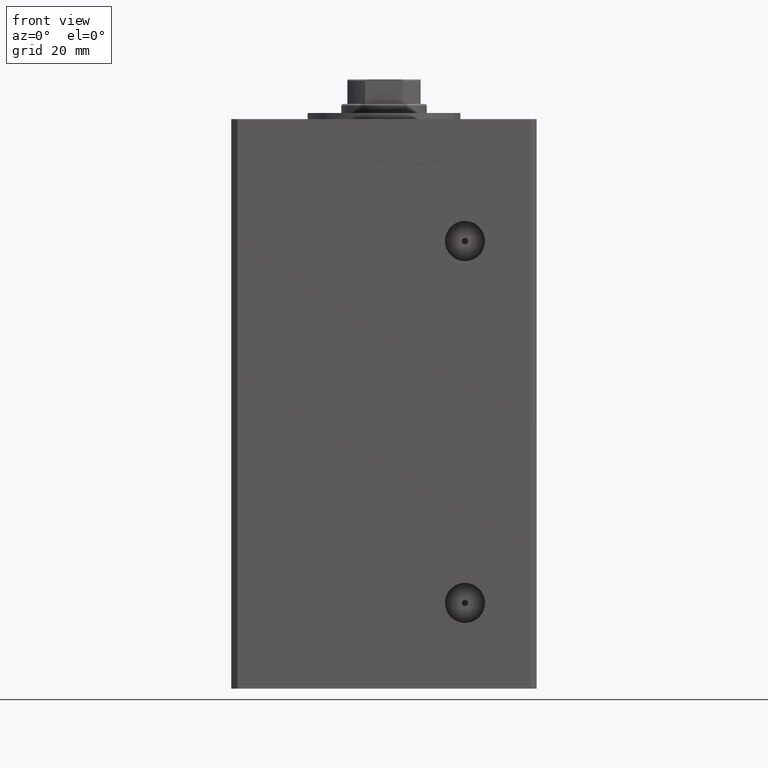
[diagram: clean part render]
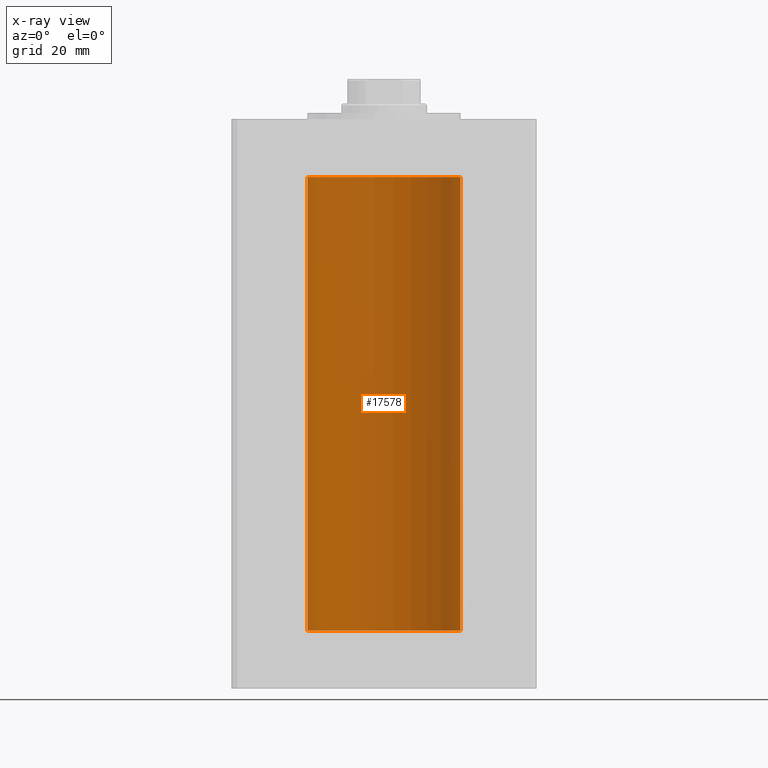
[diagram: x-ray — body ghosted, one internal face saturated and labeled with its STEP entity id]
A machine part, front view, then the same camera in x-ray: the body is ghosted and one INTERNAL B-rep face — a face not visible from any outside direction — is saturated and labeled: STEP entity #17578.
In plain terms, the highlighted cylindrical surface (partial cylindrical patch) has radius 25 mm, axis along (-0, -0, -1).
Its self-contained STEP definition (entity closure, byte-faithful):
#1449 = VERTEX_POINT ( 'NONE', #18711 ) ;
#3375 = DIRECTION ( 'NONE',  ( -1.000000000000000000, 0.000000000000000000, 0.000000000000000000 ) ) ;
#5878 = CARTESIAN_POINT ( 'NONE',  ( -25.00000000000000000, 0.000000000000000000, 0.000000000000000000 ) ) ;
#6445 = AXIS2_PLACEMENT_3D ( 'NONE', #10651, #31479, #14613 ) ;
#7211 = CARTESIAN_POINT ( 'NONE',  ( 0.000000000000000000, 0.000000000000000000, 148.5000000000000000 ) ) ;
#8178 = ORIENTED_EDGE ( 'NONE', *, *, #48488, .F. ) ;
#8936 = CARTESIAN_POINT ( 'NONE',  ( 25.00000000000000000, 3.061616997868383043E-15, 0.000000000000000000 ) ) ;
#10370 = VECTOR ( 'NONE', #48787, 1000.000000000000000 ) ;
#10651 = CARTESIAN_POINT ( 'NONE',  ( 0.000000000000000000, 0.000000000000000000, 0.000000000000000000 ) ) ;
#12387 = CARTESIAN_POINT ( 'NONE',  ( -25.00000000000000000, 0.000000000000000000, 148.5000000000000000 ) ) ;
#14375 = ORIENTED_EDGE ( 'NONE', *, *, #29675, .T. ) ;
#14613 = DIRECTION ( 'NONE',  ( 1.000000000000000000, 0.000000000000000000, 0.000000000000000000 ) ) ;
#14643 = VERTEX_POINT ( 'NONE', #42487 ) ;
#16302 = CYLINDRICAL_SURFACE ( 'NONE', #50787, 25.00000000000000000 ) ;
#17233 = AXIS2_PLACEMENT_3D ( 'NONE', #7211, #35443, #43880 ) ;
#17578 = ADVANCED_FACE ( 'NONE', ( #23444 ), #16302, .F. ) ;
#18711 = CARTESIAN_POINT ( 'NONE',  ( 25.00000000000000000, 3.061616997868383043E-15, 148.5000000000000000 ) ) ;
#20000 = DIRECTION ( 'NONE',  ( -0.000000000000000000, -0.000000000000000000, -1.000000000000000000 ) ) ;
#20850 = DIRECTION ( 'NONE',  ( -0.000000000000000000, -0.000000000000000000, -1.000000000000000000 ) ) ;
#21873 = EDGE_CURVE ( 'NONE', #14643, #45310, #38869, .T. ) ;
#23444 = FACE_OUTER_BOUND ( 'NONE', #26988, .T. ) ;
#26988 = EDGE_LOOP ( 'NONE', ( #8178, #14375, #32879, #31268 ) ) ;
#27325 = CIRCLE ( 'NONE', #17233, 25.00000000000000000 ) ;
#28340 = CIRCLE ( 'NONE', #6445, 25.00000000000000000 ) ;
#29675 = EDGE_CURVE ( 'NONE', #1449, #14643, #27325, .T. ) ;
#31111 = VECTOR ( 'NONE', #20850, 1000.000000000000000 ) ;
#31268 = ORIENTED_EDGE ( 'NONE', *, *, #36791, .F. ) ;
#31479 = DIRECTION ( 'NONE',  ( -0.000000000000000000, 0.000000000000000000, 1.000000000000000000 ) ) ;
#32879 = ORIENTED_EDGE ( 'NONE', *, *, #21873, .T. ) ;
#32976 = CARTESIAN_POINT ( 'NONE',  ( 25.00000000000000000, 3.061616997868383043E-15, 148.5000000000000000 ) ) ;
#35443 = DIRECTION ( 'NONE',  ( -0.000000000000000000, 0.000000000000000000, 1.000000000000000000 ) ) ;
#36791 = EDGE_CURVE ( 'NONE', #40902, #45310, #28340, .T. ) ;
#37208 = LINE ( 'NONE', #32976, #31111 ) ;
#38869 = LINE ( 'NONE', #12387, #10370 ) ;
#39528 = CARTESIAN_POINT ( 'NONE',  ( 0.000000000000000000, 0.000000000000000000, 148.5000000000000000 ) ) ;
#40902 = VERTEX_POINT ( 'NONE', #8936 ) ;
#42487 = CARTESIAN_POINT ( 'NONE',  ( -25.00000000000000000, 0.000000000000000000, 148.5000000000000000 ) ) ;
#43880 = DIRECTION ( 'NONE',  ( 1.000000000000000000, 0.000000000000000000, 0.000000000000000000 ) ) ;
#45310 = VERTEX_POINT ( 'NONE', #5878 ) ;
#48488 = EDGE_CURVE ( 'NONE', #1449, #40902, #37208, .T. ) ;
#48787 = DIRECTION ( 'NONE',  ( -0.000000000000000000, -0.000000000000000000, -1.000000000000000000 ) ) ;
#50787 = AXIS2_PLACEMENT_3D ( 'NONE', #39528, #20000, #3375 ) ;